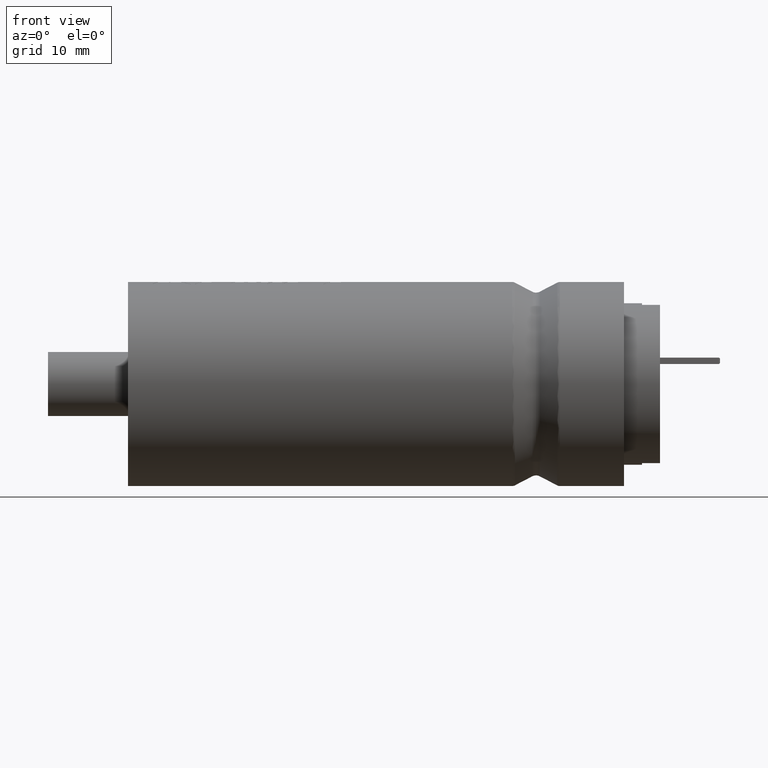
[diagram: clean part render]
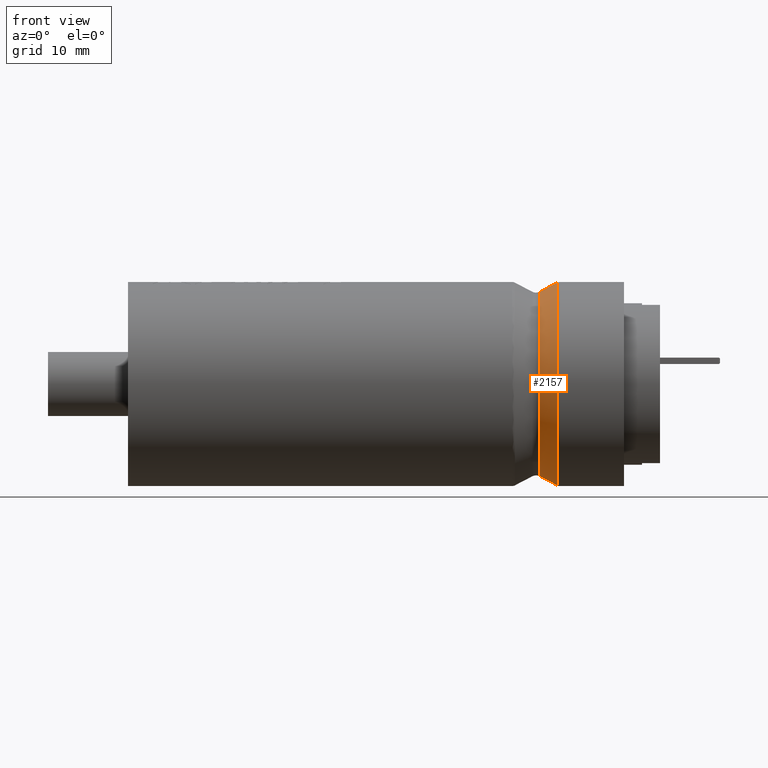
[diagram: same view with one face highlighted and labeled with its STEP entity id]
A machine part, front view. The second image highlights one B-rep face of the part: STEP entity #2157.
In plain terms, the highlighted conical surface has half-angle 27.492 deg.
Its self-contained STEP definition (entity closure, byte-faithful):
#13 = ORIENTED_EDGE ( 'NONE', *, *, #1983, .F. ) ;
#21 = DIRECTION ( 'NONE',  ( 0.0000000000000000000, 0.0000000000000000000, -1.000000000000000000 ) ) ;
#297 = CARTESIAN_POINT ( 'NONE',  ( 51.00000000000000700, 1.382985057749511900E-015, 11.29293000000000000 ) ) ;
#852 = EDGE_CURVE ( 'NONE', #1189, #5091, #5942, .T. ) ;
#929 = EDGE_LOOP ( 'NONE', ( #13, #4173, #5198, #3890 ) ) ;
#1012 = CIRCLE ( 'NONE', #3669, 11.53314857238554200 ) ;
#1018 = DIRECTION ( 'NONE',  ( 1.000000000000000000, -0.0000000000000000000, -0.0000000000000000000 ) ) ;
#1189 = VERTEX_POINT ( 'NONE', #4901 ) ;
#1238 = CARTESIAN_POINT ( 'NONE',  ( 51.00000000000000700, 0.0000000000000000000, 0.0000000000000000000 ) ) ;
#1364 = EDGE_CURVE ( 'NONE', #5956, #1189, #1012, .T. ) ;
#1394 = LINE ( 'NONE', #297, #3716 ) ;
#1607 = CARTESIAN_POINT ( 'NONE',  ( 53.63725134114065400, 0.0000000000000000000, -12.66530850415564700 ) ) ;
#1850 = CONICAL_SURFACE ( 'NONE', #3142, 11.29293000000000000, 0.4798200500850800000 ) ;
#1983 = EDGE_CURVE ( 'NONE', #5956, #2420, #1394, .T. ) ;
#2157 = ADVANCED_FACE ( 'NONE', ( #3926 ), #1850, .T. ) ;
#2420 = VERTEX_POINT ( 'NONE', #4368 ) ;
#2431 = CARTESIAN_POINT ( 'NONE',  ( 51.00000000000000700, 0.0000000000000000000, -11.29293000000000000 ) ) ;
#2464 = DIRECTION ( 'NONE',  ( -1.000000000000000000, 0.0000000000000000000, 0.0000000000000000000 ) ) ;
#2471 = DIRECTION ( 'NONE',  ( 1.000000000000000000, -0.0000000000000000000, -0.0000000000000000000 ) ) ;
#2487 = CIRCLE ( 'NONE', #4009, 12.66530850415564700 ) ;
#2983 = DIRECTION ( 'NONE',  ( 0.0000000000000000000, 0.0000000000000000000, -1.000000000000000000 ) ) ;
#3018 = DIRECTION ( 'NONE',  ( 0.0000000000000000000, 0.0000000000000000000, 1.000000000000000000 ) ) ;
#3142 = AXIS2_PLACEMENT_3D ( 'NONE', #1238, #1018, #21 ) ;
#3502 = CARTESIAN_POINT ( 'NONE',  ( 51.46161955340480200, 0.0000000000000000000, 0.0000000000000000000 ) ) ;
#3635 = DIRECTION ( 'NONE',  ( 0.8870780055408639100, 5.653209085010135800E-017, 0.4616195534047956000 ) ) ;
#3669 = AXIS2_PLACEMENT_3D ( 'NONE', #3502, #2471, #2983 ) ;
#3716 = VECTOR ( 'NONE', #3635, 1000.000000000000000 ) ;
#3890 = ORIENTED_EDGE ( 'NONE', *, *, #5027, .T. ) ;
#3926 = FACE_OUTER_BOUND ( 'NONE', #929, .T. ) ;
#3967 = VECTOR ( 'NONE', #4386, 1000.000000000000000 ) ;
#4009 = AXIS2_PLACEMENT_3D ( 'NONE', #5339, #2464, #3018 ) ;
#4173 = ORIENTED_EDGE ( 'NONE', *, *, #1364, .T. ) ;
#4368 = CARTESIAN_POINT ( 'NONE',  ( 53.63725134114065400, 1.551052951982796500E-015, 12.66530850415564700 ) ) ;
#4386 = DIRECTION ( 'NONE',  ( 0.8870780055408639100, 0.0000000000000000000, -0.4616195534047956000 ) ) ;
#4901 = CARTESIAN_POINT ( 'NONE',  ( 51.46161955340480200, 0.0000000000000000000, -11.53314857238554200 ) ) ;
#5027 = EDGE_CURVE ( 'NONE', #5091, #2420, #2487, .T. ) ;
#5055 = CARTESIAN_POINT ( 'NONE',  ( 51.46161955340480200, 1.481728150154539100E-015, 11.53314857238554200 ) ) ;
#5091 = VERTEX_POINT ( 'NONE', #1607 ) ;
#5198 = ORIENTED_EDGE ( 'NONE', *, *, #852, .T. ) ;
#5339 = CARTESIAN_POINT ( 'NONE',  ( 53.63725134114065400, 0.0000000000000000000, 0.0000000000000000000 ) ) ;
#5942 = LINE ( 'NONE', #2431, #3967 ) ;
#5956 = VERTEX_POINT ( 'NONE', #5055 ) ;